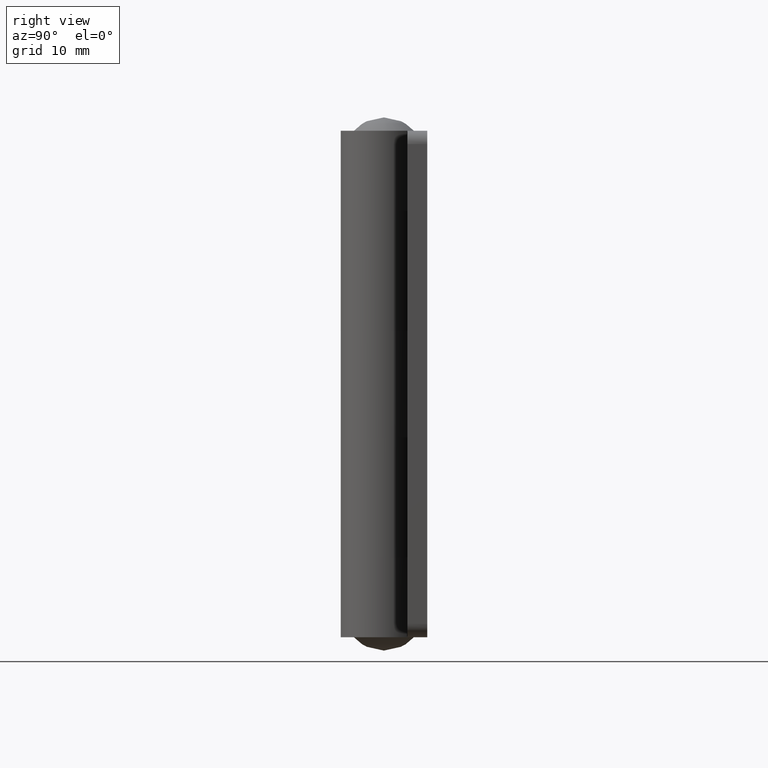
[diagram: clean part render]
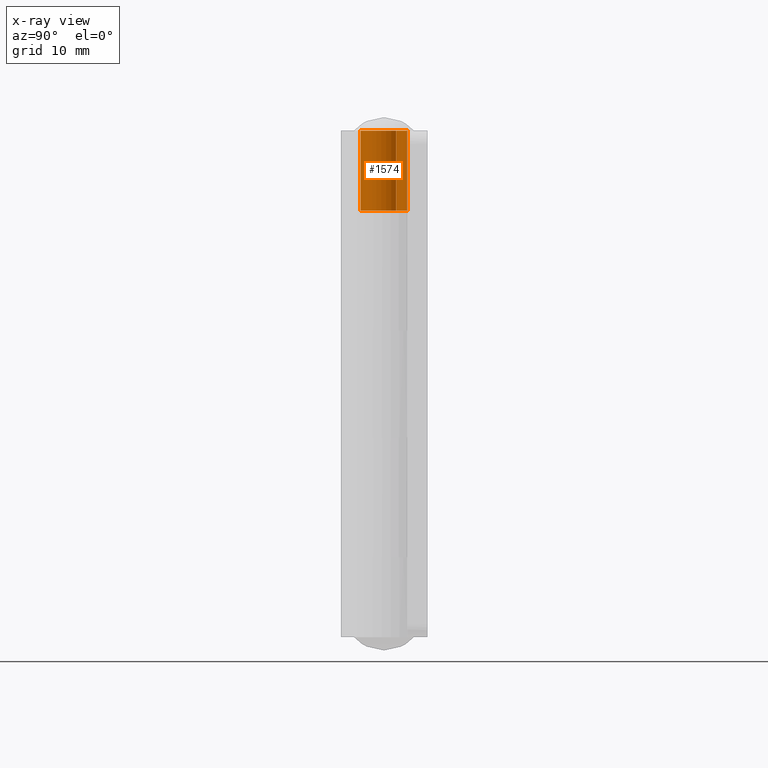
[diagram: x-ray — body ghosted, one internal face saturated and labeled with its STEP entity id]
A machine part, right view, then the same camera in x-ray: the body is ghosted and one INTERNAL B-rep face — a face not visible from any outside direction — is saturated and labeled: STEP entity #1574.
In plain terms, the highlighted face is a freeform B-spline surface patch.
Its self-contained STEP definition (entity closure, byte-faithful):
#1210=CARTESIAN_POINT('',(0.0,3.500000000000000,64.0));
#1211=VERTEX_POINT('',#1210);
#1217=CARTESIAN_POINT('',(2.966307349203860,1.857692307692310,64.0));
#1218=VERTEX_POINT('',#1217);
#1219=CARTESIAN_POINT('',(2.966307349203858,1.857692307692311,64.0));
#1220=CARTESIAN_POINT('',(4.405058835320861,-0.439662905156915,64.0));
#1221=CARTESIAN_POINT('',(2.540621166780902,-2.407331320550798,64.0));
#1222=CARTESIAN_POINT('',(0.676183498240944,-4.374999735944681,64.0));
#1223=CARTESIAN_POINT('',(-1.695298929846431,-3.062019193026318,64.0));
#1224=CARTESIAN_POINT('',(-4.066781357933809,-1.749038650107955,64.0));
#1225=CARTESIAN_POINT('',(-3.388736281830744,0.875480674946025,64.0));
#1226=CARTESIAN_POINT('',(-2.710691205727680,3.500000000000000,64.0));
#1227=CARTESIAN_POINT('',(0.0,3.500000000000000,64.0));
#1235=(BOUNDED_CURVE()B_SPLINE_CURVE(2,(#1219,#1220,#1221,#1222,#1223,#1224,#1225,#1226,#1227),.UNSPECIFIED.,.F.,.U.)B_SPLINE_CURVE_WITH_KNOTS((3,2,2,2,3),(0.0,0.250000000000000,0.500000000000000,0.750000000000000,1.0),.UNSPECIFIED.)CURVE()GEOMETRIC_REPRESENTATION_ITEM()RATIONAL_B_SPLINE_CURVE((1.0,0.790612843210526,1.0,0.790612843210526,1.0,0.790612843210526,1.0,0.790612843210526,1.0))REPRESENTATION_ITEM(''));
#1236=EDGE_CURVE('',#1218,#1211,#1235,.T.);
#1420=CARTESIAN_POINT('',(0.0,3.500000000000000,76.0));
#1421=VERTEX_POINT('',#1420);
#1456=CARTESIAN_POINT('',(2.966307349203860,1.857692307692310,76.0));
#1457=VERTEX_POINT('',#1456);
#1463=CARTESIAN_POINT('',(2.966307349203858,1.857692307692311,76.0));
#1464=CARTESIAN_POINT('',(4.405058835320861,-0.439662905156915,75.999999999999986));
#1465=CARTESIAN_POINT('',(2.540621166780902,-2.407331320550798,76.0));
#1466=CARTESIAN_POINT('',(0.676183498240944,-4.374999735944681,75.999999999999986));
#1467=CARTESIAN_POINT('',(-1.695298929846431,-3.062019193026318,76.0));
#1468=CARTESIAN_POINT('',(-4.066781357933809,-1.749038650107955,75.999999999999986));
#1469=CARTESIAN_POINT('',(-3.388736281830744,0.875480674946025,76.0));
#1470=CARTESIAN_POINT('',(-2.710691205727680,3.500000000000000,75.999999999999986));
#1471=CARTESIAN_POINT('',(0.0,3.500000000000000,76.0));
#1479=(BOUNDED_CURVE()B_SPLINE_CURVE(2,(#1463,#1464,#1465,#1466,#1467,#1468,#1469,#1470,#1471),.UNSPECIFIED.,.F.,.U.)B_SPLINE_CURVE_WITH_KNOTS((3,2,2,2,3),(0.0,0.250000000000000,0.500000000000000,0.750000000000000,1.0),.UNSPECIFIED.)CURVE()GEOMETRIC_REPRESENTATION_ITEM()RATIONAL_B_SPLINE_CURVE((1.0,0.790612843210526,1.0,0.790612843210526,1.0,0.790612843210526,1.0,0.790612843210526,1.0))REPRESENTATION_ITEM(''));
#1480=EDGE_CURVE('',#1457,#1421,#1479,.T.);
#1528=CARTESIAN_POINT('',(2.966307349203860,1.857692307692310,76.0));
#1529=CARTESIAN_POINT('',(2.966307349203860,1.857692307692310,64.0));
#1530=QUASI_UNIFORM_CURVE('',1,(#1528,#1529),.UNSPECIFIED.,.F.,.U.);
#1531=EDGE_CURVE('',#1457,#1218,#1530,.T.);
#1542=CARTESIAN_POINT('',(0.030542874244306,3.499866730724598,76.300000000000011));
#1543=CARTESIAN_POINT('',(0.030542874244306,3.499866730724598,63.692500000000003));
#1544=CARTESIAN_POINT('',(-4.291432599779125,3.537584039281299,76.300000000000011));
#1545=CARTESIAN_POINT('',(-4.291432599779125,3.537584039281299,63.692499999999995));
#1546=CARTESIAN_POINT('',(-3.429736466172902,-0.697787770460192,76.300000000000011));
#1547=CARTESIAN_POINT('',(-3.429736466172902,-0.697787770460192,63.692500000000003));
#1548=CARTESIAN_POINT('',(-2.568040332566678,-4.933159580201682,76.300000000000011));
#1549=CARTESIAN_POINT('',(-2.568040332566678,-4.933159580201682,63.692499999999995));
#1550=CARTESIAN_POINT('',(1.395621741238362,-3.209710260347933,76.300000000000011));
#1551=CARTESIAN_POINT('',(1.395621741238362,-3.209710260347933,63.692500000000003));
#1552=CARTESIAN_POINT('',(5.359283815043403,-1.486260940494183,76.300000000000011));
#1553=CARTESIAN_POINT('',(5.359283815043403,-1.486260940494183,63.692499999999995));
#1554=CARTESIAN_POINT('',(2.849404314247117,2.032460344988288,76.300000000000011));
#1555=CARTESIAN_POINT('',(2.849404314247117,2.032460344988288,63.692500000000003));
#1563=(BOUNDED_SURFACE()B_SPLINE_SURFACE(1,2,((#1542,#1544,#1546,#1548,#1550,#1552,#1554),(#1543,#1545,#1547,#1549,#1551,#1553,#1555)),.UNSPECIFIED.,.F.,.F.,.U.)B_SPLINE_SURFACE_WITH_KNOTS((2,2),(3,2,2,3),(0.0,12.607500000000019),(0.0,6.677657457774239,13.355314915548480,20.032972373322721),.UNSPECIFIED.)GEOMETRIC_REPRESENTATION_ITEM()RATIONAL_B_SPLINE_SURFACE(((1.0,0.629320391049838,1.0,0.629320391049838,1.0,0.629320391049838,1.0),(1.0,0.629320391049838,1.0,0.629320391049838,1.0,0.629320391049838,1.0)))REPRESENTATION_ITEM('')SURFACE());
#1564=ORIENTED_EDGE('',*,*,#1531,.T.);
#1565=ORIENTED_EDGE('',*,*,#1236,.T.);
#1566=CARTESIAN_POINT('',(0.0,3.500000000000000,76.0));
#1567=CARTESIAN_POINT('',(0.0,3.500000000000000,64.0));
#1568=QUASI_UNIFORM_CURVE('',1,(#1566,#1567),.UNSPECIFIED.,.F.,.U.);
#1569=EDGE_CURVE('',#1421,#1211,#1568,.T.);
#1570=ORIENTED_EDGE('',*,*,#1569,.F.);
#1571=ORIENTED_EDGE('',*,*,#1480,.F.);
#1572=EDGE_LOOP('',(#1564,#1565,#1570,#1571));
#1573=FACE_OUTER_BOUND('',#1572,.T.);
#1574=ADVANCED_FACE('',(#1573),#1563,.F.);